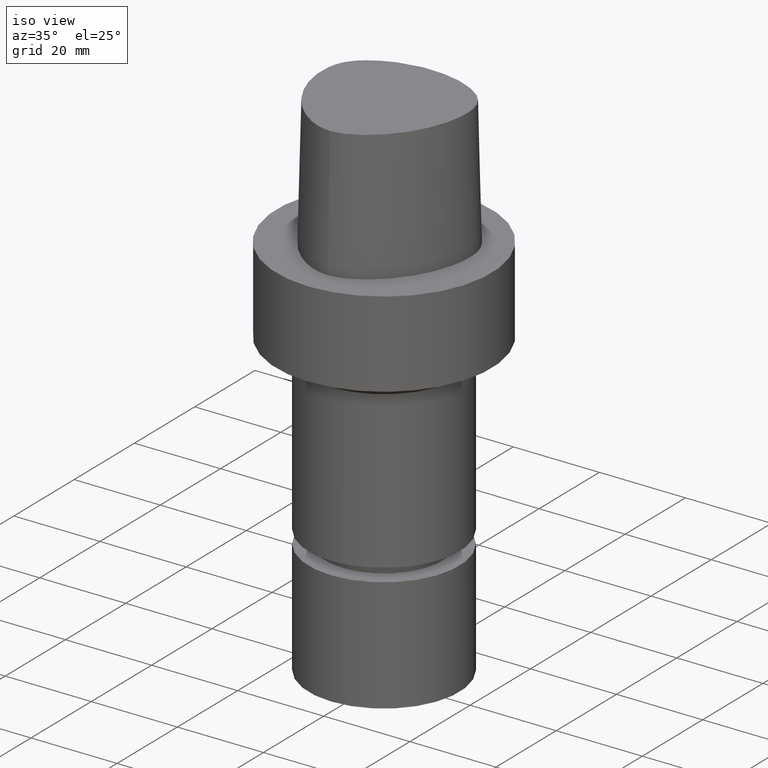
[diagram: clean part render]
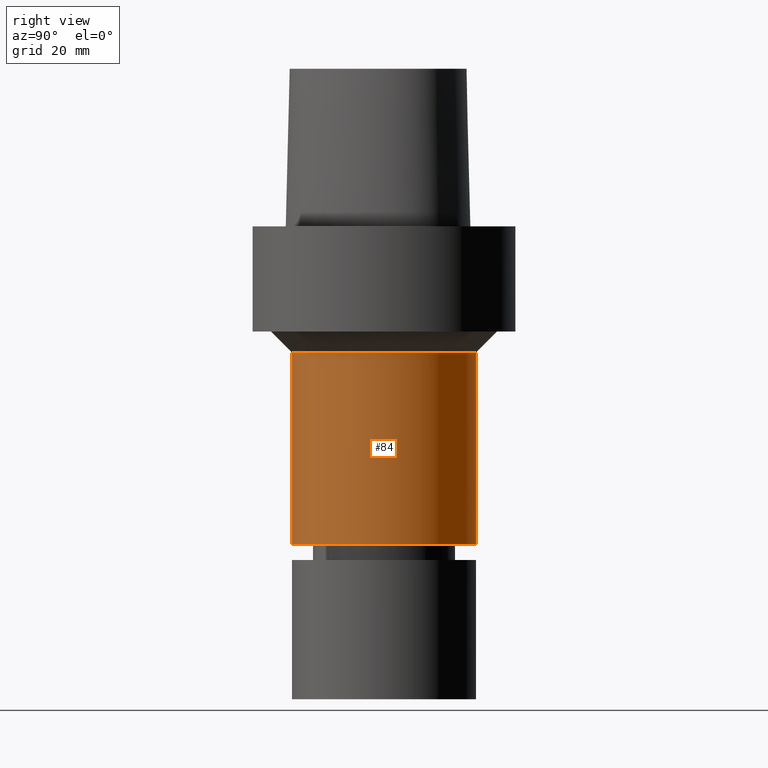
[diagram: tour spotlight — one face highlighted and labeled with its STEP entity id]
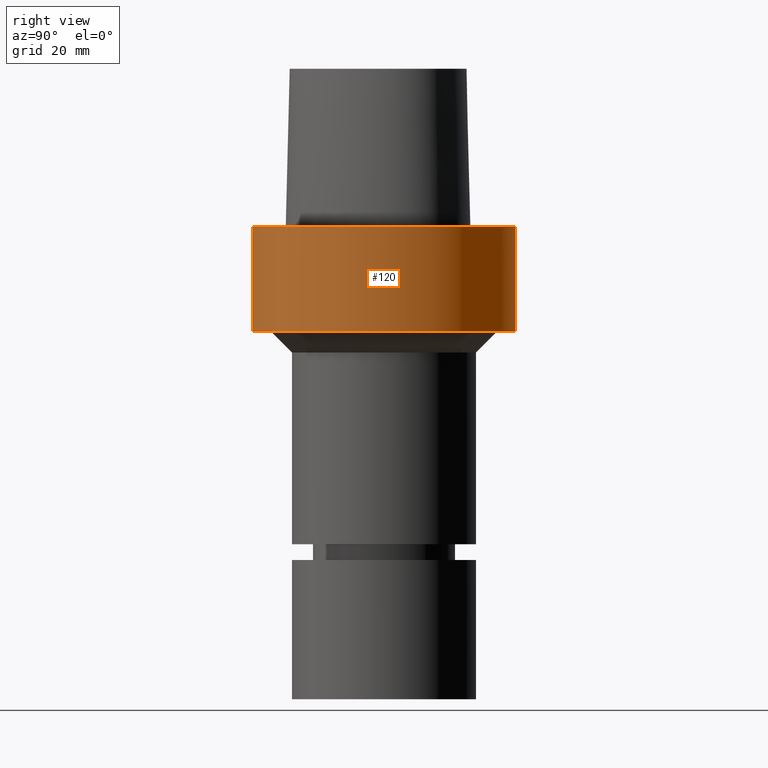
[diagram: tour spotlight — one face highlighted and labeled with its STEP entity id]
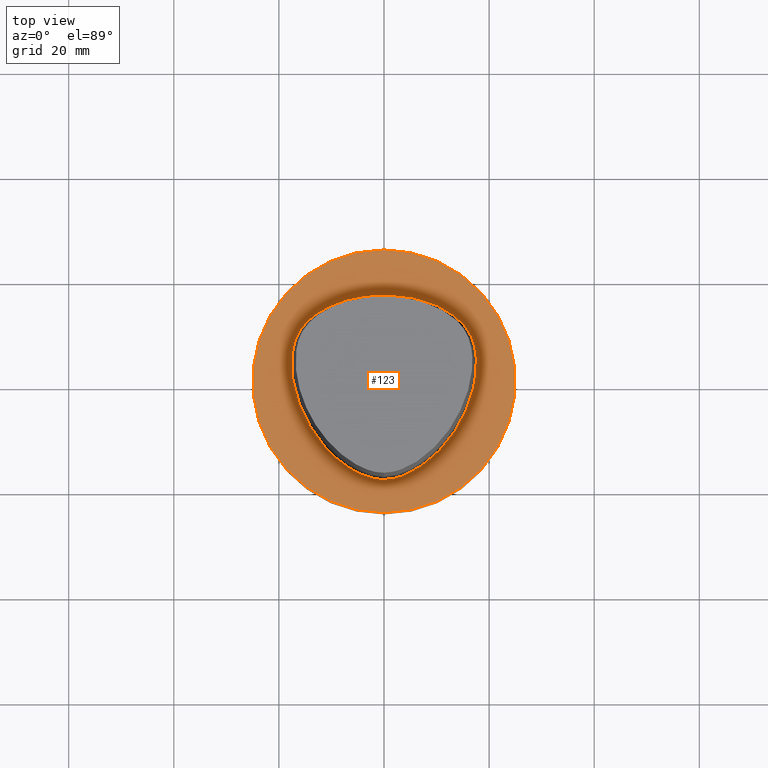
[diagram: tour spotlight — one face highlighted and labeled with its STEP entity id]
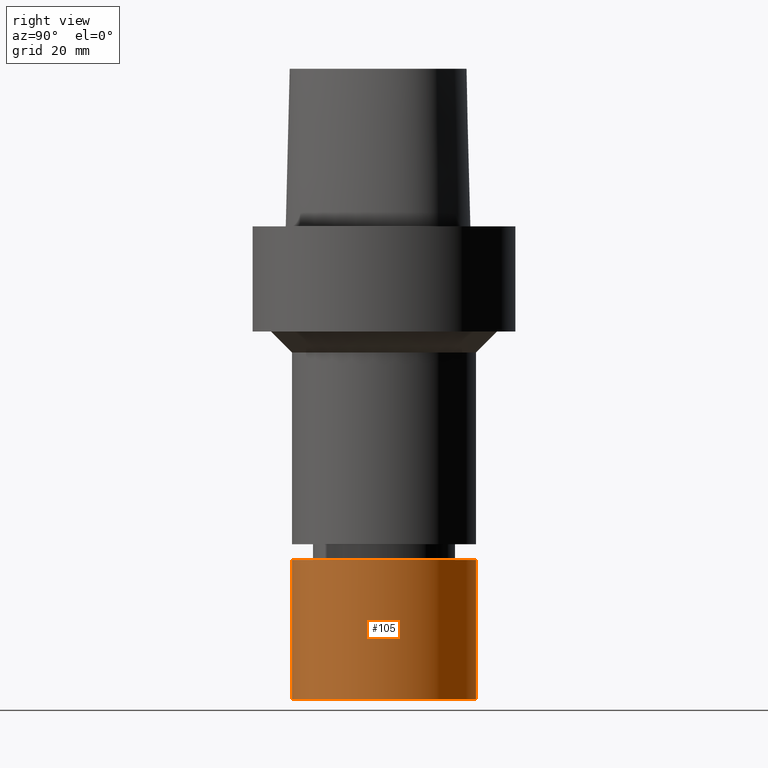
[diagram: tour spotlight — one face highlighted and labeled with its STEP entity id]
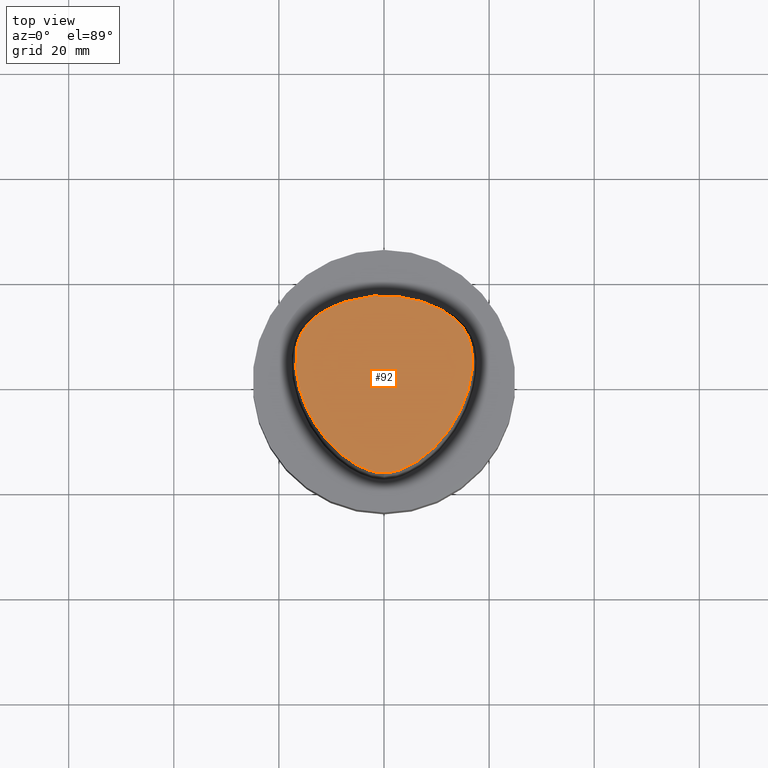
[diagram: tour spotlight — one face highlighted and labeled with its STEP entity id]
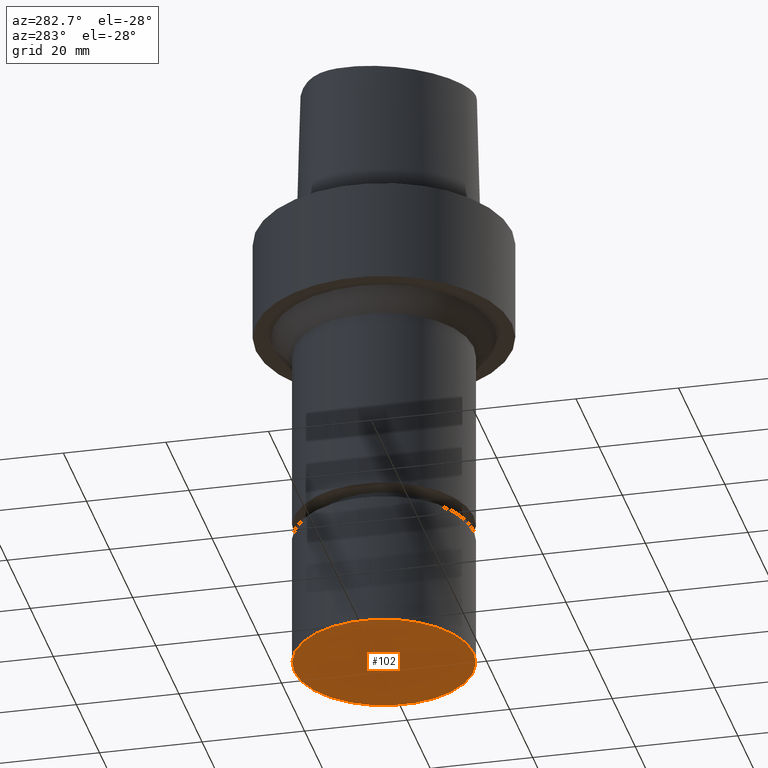
[diagram: tour spotlight — one face highlighted and labeled with its STEP entity id]
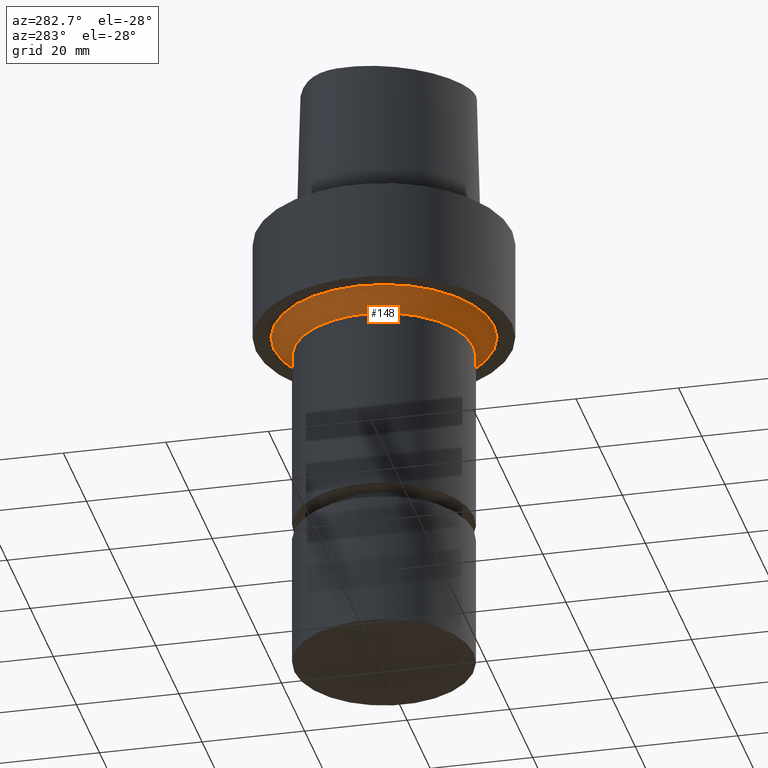
[diagram: tour spotlight — one face highlighted and labeled with its STEP entity id]
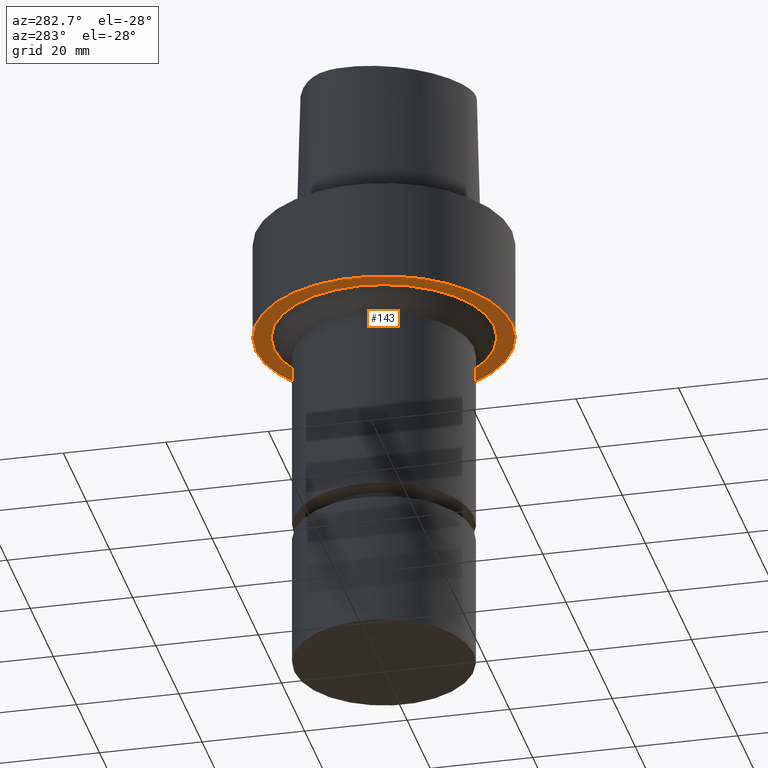
[diagram: tour spotlight — one face highlighted and labeled with its STEP entity id]
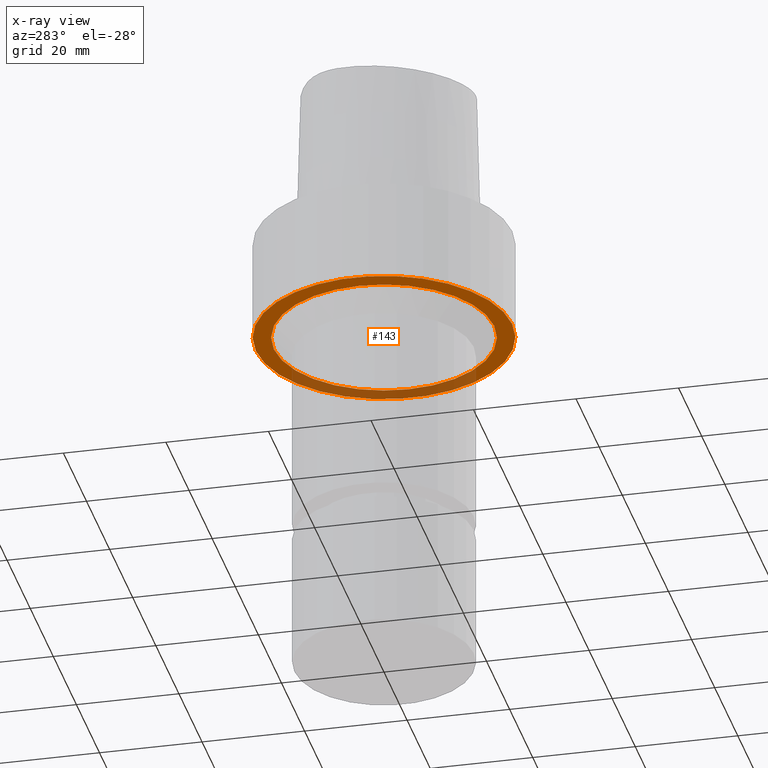
[diagram: x-ray of the same camera — body ghosted, this tour face saturated]
A machine part: a face-by-face anatomy tour. The part has 16 B-rep faces; the first image is the clean iso view, then the 8 largest visible faces are spotlighted one at a time (largest first), each with its STEP entity span.

Face 1 — right view, entity #84. In plain terms, the highlighted cylindrical surface (bore or boss wall) has radius 17.5 mm, axis along (0, 0, -1).
Definition (entity closure, byte-faithful):
#84=ADVANCED_FACE('Unnamed[1]',(#196,#197),#198,.T.);
#115=EDGE_CURVE('Unnamed[1]',#240,#240,#241,.T.);
#127=EDGE_CURVE('Unnamed[1]',#259,#259,#260,.T.);
#196=FACE_BOUND('',#771,.T.);
#197=FACE_BOUND('',#772,.T.);
#198=CYLINDRICAL_SURFACE('',#773,17.4999999999996);
#240=VERTEX_POINT('',#924);
#241=CIRCLE('',#925,17.4999999999997);
#259=VERTEX_POINT('',#948);
#260=CIRCLE('',#949,17.4999999999995);
#771=EDGE_LOOP('',(#1017));
#772=EDGE_LOOP('',(#1018));
#773=AXIS2_PLACEMENT_3D('',#1019,#1020,#1021);
#924=CARTESIAN_POINT('',(3.70455656742073E-015,17.4999999999997,-60.4999999999998));
#925=AXIS2_PLACEMENT_3D('',#1061,#1062,#1063);
#948=CARTESIAN_POINT('',(1.46957615897683E-015,17.4999999999995,-24.0));
#949=AXIS2_PLACEMENT_3D('',#1082,#1083,#1084);
#1017=ORIENTED_EDGE('',*,*,#115,.F.);
#1018=ORIENTED_EDGE('',*,*,#127,.T.);
#1019=CARTESIAN_POINT('',(2.58706636319878E-015,5.17413272639755E-015,-42.2499999999999));
#1020=DIRECTION('',(6.12323399573676E-017,1.22464679914735E-016,-1.0));
#1021=DIRECTION('',(-1.23259516440783E-032,1.0,1.22464679914735E-016));
#1061=CARTESIAN_POINT('',(3.70455656742073E-015,7.40911313484146E-015,-60.4999999999998));
#1062=DIRECTION('',(6.12323399573677E-017,1.22464679914735E-016,-1.0));
#1063=DIRECTION('',(-1.23259516440783E-032,1.0,1.22464679914735E-016));
#1082=CARTESIAN_POINT('',(1.46957615897683E-015,2.93915231795365E-015,-24.0));
#1083=DIRECTION('',(6.12323399573677E-017,1.22464679914735E-016,-1.0));
#1084=DIRECTION('',(-1.23259516440783E-032,1.0,1.22464679914735E-016));

Face 2 — right view, entity #120. In plain terms, the highlighted cylindrical surface (bore or boss wall) has radius 25 mm, axis along (0, 0, -1).
Definition (entity closure, byte-faithful):
#120=ADVANCED_FACE('Unnamed[1]',(#247,#248),#249,.T.);
#137=EDGE_CURVE('Unnamed[1]',#273,#273,#274,.T.);
#145=EDGE_CURVE('Unnamed[1]',#286,#286,#287,.T.);
#247=FACE_BOUND('',#933,.T.);
#248=FACE_BOUND('',#934,.T.);
#249=CYLINDRICAL_SURFACE('',#935,25.0);
#273=VERTEX_POINT('',#965);
#274=CIRCLE('',#966,25.0);
#286=VERTEX_POINT('',#981);
#287=CIRCLE('',#982,25.0);
#933=EDGE_LOOP('',(#1068));
#934=EDGE_LOOP('',(#1069));
#935=AXIS2_PLACEMENT_3D('',#1070,#1071,#1072);
#965=CARTESIAN_POINT('',(1.22464679914735E-015,25.0,-20.0));
#966=AXIS2_PLACEMENT_3D('',#1095,#1096,#1097);
#981=CARTESIAN_POINT('',(-3.08148791101958E-031,25.0,3.06161699786838E-015));
#982=AXIS2_PLACEMENT_3D('',#1110,#1111,#1112);
#1068=ORIENTED_EDGE('',*,*,#137,.F.);
#1069=ORIENTED_EDGE('',*,*,#145,.T.);
#1070=CARTESIAN_POINT('',(6.12323399573677E-016,1.22464679914735E-015,-10.0));
#1071=DIRECTION('',(6.12323399573677E-017,1.22464679914735E-016,-1.0));
#1072=DIRECTION('',(-1.23259516440783E-032,1.0,1.22464679914735E-016));
#1095=CARTESIAN_POINT('',(1.22464679914735E-015,2.44929359829471E-015,-20.0));
#1096=DIRECTION('',(6.12323399573677E-017,1.22464679914735E-016,-1.0));
#1097=DIRECTION('',(-1.23259516440783E-032,1.0,1.22464679914735E-016));
#1110=CARTESIAN_POINT('',(0.0,0.0,0.0));
#1111=DIRECTION('',(6.12323399573677E-017,1.22464679914735E-016,-1.0));
#1112=DIRECTION('',(-1.23259516440783E-032,1.0,1.22464679914735E-016));

Face 3 — top view, entity #123. In plain terms, the highlighted planar face has unit normal (-0, -0, 1).
Definition (entity closure, byte-faithful):
#99=EDGE_CURVE('Unnamed[1]',#219,#219,#220,.T.);
#123=ADVANCED_FACE('Unnamed[1]',(#252,#253),#254,.T.);
#145=EDGE_CURVE('Unnamed[1]',#286,#286,#287,.T.);
#219=VERTEX_POINT('',#800);
#220=B_SPLINE_CURVE_WITH_KNOTS('',3,(#801,#802,#803,#804,#805,#806,#807,#808,#809,#810,#811,#812,#813,#814,#815,#816,#817,#818,#819,#820,#821,#822,#823,#824,#825,#826,#827,#828,#829,#830,#831,#832,#833,#834,#835,#836,#837,#838,#839,#840,#841,#842,#843,#844,#845,#846,#847,#848,#849,#850,#851,#852,#853,#854,#855,#856,#857,#858,#859,#860,#861,#862,#863,#864,#865,#866,#867,#868,#869,#870,#871,#872,#873,#874,#875,#876,#877,#878,#879,#880,#881,#882,#883,#884,#885,#886,#887,#888,#889,#890,#891,#892,#893,#894,#895,#896),.UNSPECIFIED.,.T.,.F.,(4,2,2,2,2,2,2,2,2,2,2,2,2,2,2,2,2,2,2,2,2,2,2,2,2,2,2,2,2,2,2,2,2,2,2,2,2,2,2,2,2,2,2,2,2,2,2,4),(0.0,0.000251979175567,0.023135829350767,0.046149078767971,0.068686553945372,0.09058948843834,0.11187442371895,0.132659030725504,0.153111474090064,0.173428097006866,0.193812703683075,0.214465113334926,0.235566638619369,0.257256396596226,0.279590584305387,0.302476275092963,0.325611612149197,0.348735785989546,0.371826971229282,0.39455923139207,0.416669726533691,0.438154204641074,0.459103554741756,0.479643077908811,0.50010643098029,0.520399705216369,0.54092682403315,0.561890845659905,0.583370991138857,0.605476574502583,0.62820876493626,0.65131550684809,0.674427687768046,0.697531018602722,0.720425222070344,0.742763449220249,0.764449723968905,0.785551037463572,0.806204240231889,0.826588983931571,0.846905402970388,0.867357715119018,0.88814171778586,0.909429413217286,0.931324749020081,0.953885589892717,0.976862732393428,1.0),.UNSPECIFIED.);
#252=FACE_BOUND('',#939,.T.);
#253=FACE_OUTER_BOUND('',#940,.T.);
#254=PLANE('',#941);
#286=VERTEX_POINT('',#981);
#287=CIRCLE('',#982,25.0);
#800=CARTESIAN_POINT('',(-0.00144332333831829,-18.693734925237,1.58949405722709E-031));
#801=CARTESIAN_POINT('',(-0.00144332333831829,-18.693734925237,1.58949405722709E-031));
#802=CARTESIAN_POINT('',(-0.0107097733408023,-18.6937739851458,1.18444691579815E-031));
#803=CARTESIAN_POINT('',(-0.0199759398304303,-18.6937986220233,1.90667064494336E-031));
#804=CARTESIAN_POINT('',(-0.87073259155424,-18.6947332287258,-2.46519032881566E-032));
#805=CARTESIAN_POINT('',(-1.7132146687811,-18.5561236138986,-1.72563323017096E-031));
#806=CARTESIAN_POINT('',(-3.34678034951543,-18.1076178270182,1.23259516440783E-031));
#807=CARTESIAN_POINT('',(-4.13763295357352,-17.7966649911857,0.0));
#808=CARTESIAN_POINT('',(-5.64401230436313,-17.0611782657116,-1.4791141972894E-031));
#809=CARTESIAN_POINT('',(-6.36074874666199,-16.6390568826018,9.86076131526265E-032));
#810=CARTESIAN_POINT('',(-7.71193183747336,-15.717785465073,-9.86076131526265E-032));
#811=CARTESIAN_POINT('',(-8.34816817062737,-15.221133209089,-1.97215226305253E-031));
#812=CARTESIAN_POINT('',(-9.54864267958622,-14.1801662707339,0.0));
#813=CARTESIAN_POINT('',(-10.1143778244459,-13.6375391489888,-9.86076131526265E-032));
#814=CARTESIAN_POINT('',(-11.1785439970871,-12.5139706700162,-9.86076131526265E-032));
#815=CARTESIAN_POINT('',(-11.6782474581115,-11.9342299113078,0.0));
#816=CARTESIAN_POINT('',(-12.6162342990191,-10.7421055435185,-1.97215226305253E-031));
#817=CARTESIAN_POINT('',(-13.055371557502,-10.1303892417647,0.0));
#818=CARTESIAN_POINT('',(-13.8770457728377,-8.87590863790404,9.86076131526265E-032));
#819=CARTESIAN_POINT('',(-14.2599388402702,-8.2333768267112,-9.86076131526265E-032));
#820=CARTESIAN_POINT('',(-14.97168833234,-6.91623888397976,1.97215226305253E-031));
#821=CARTESIAN_POINT('',(-15.3003608122286,-6.24153310972228,0.0));
#822=CARTESIAN_POINT('',(-15.9019181796067,-4.85709547419161,0.0));
#823=CARTESIAN_POINT('',(-16.1740130050164,-4.14701882283056,1.97215226305253E-031));
#824=CARTESIAN_POINT('',(-16.6580397097976,-2.68928374551173,0.0));
#825=CARTESIAN_POINT('',(-16.8685476043865,-1.9411430240201,0.0));
#826=CARTESIAN_POINT('',(-17.2177110849312,-0.406254182783721,0.0));
#827=CARTESIAN_POINT('',(-17.3541927925624,0.380994664903646,0.0));
#828=CARTESIAN_POINT('',(-17.5416073974851,1.99022033864964,0.0));
#829=CARTESIAN_POINT('',(-17.5899626525416,2.81255460248461,0.0));
#830=CARTESIAN_POINT('',(-17.563584952533,4.47617713465644,0.0));
#831=CARTESIAN_POINT('',(-17.4857707493695,5.31746225938347,0.0));
#832=CARTESIAN_POINT('',(-17.1712152948197,6.98496502795616,0.0));
#833=CARTESIAN_POINT('',(-16.932846471387,7.81104073212088,0.0));
#834=CARTESIAN_POINT('',(-16.2234989303146,9.36022258130064,0.0));
#835=CARTESIAN_POINT('',(-15.7525288634429,10.0833544868442,0.0));
#836=CARTESIAN_POINT('',(-14.6462939775209,11.3794173305263,0.0));
#837=CARTESIAN_POINT('',(-14.0112703709932,11.9525998966018,0.0));
#838=CARTESIAN_POINT('',(-12.6649577858213,12.9708269345166,0.0));
#839=CARTESIAN_POINT('',(-11.9549187103733,13.4176956956896,9.86076131526265E-032));
#840=CARTESIAN_POINT('',(-10.5004911910335,14.1970175551563,0.0));
#841=CARTESIAN_POINT('',(-9.7575533569854,14.5322819629711,-9.86076131526265E-032));
#842=CARTESIAN_POINT('',(-8.26254539063019,15.1133265717584,-9.86076131526265E-032));
#843=CARTESIAN_POINT('',(-7.51128946075537,15.3613193072948,-9.86076131526265E-032));
#844=CARTESIAN_POINT('',(-6.00522655029125,15.7739014771636,0.0));
#845=CARTESIAN_POINT('',(-5.25098149060303,15.940365829473,4.93038065763132E-032));
#846=CARTESIAN_POINT('',(-3.74452370137136,16.1783002530882,4.93038065763132E-032));
#847=CARTESIAN_POINT('',(-2.9925639102356,16.2517640462219,-1.97215226305253E-031));
#848=CARTESIAN_POINT('',(-1.48914620895443,16.3898646921674,-1.84889274661175E-031));
#849=CARTESIAN_POINT('',(-0.737689844422075,16.454322887119,1.84889274661175E-031));
#850=CARTESIAN_POINT('',(0.759326987696435,16.4536103338567,6.77927340424307E-032));
#851=CARTESIAN_POINT('',(1.50487089700432,16.3916719627081,-1.97215226305253E-031));
#852=CARTESIAN_POINT('',(3.00152605278829,16.2529050894156,-7.39557098644699E-032));
#853=CARTESIAN_POINT('',(3.75259609178933,16.1756990011092,-9.86076131526265E-032));
#854=CARTESIAN_POINT('',(5.25866006360267,15.9348272624441,-1.4791141972894E-031));
#855=CARTESIAN_POINT('',(6.01339669607053,15.7693347335975,1.4791141972894E-031));
#856=CARTESIAN_POINT('',(7.52174791015443,15.3636385273713,0.0));
#857=CARTESIAN_POINT('',(8.27488011859475,15.1217203315759,0.0));
#858=CARTESIAN_POINT('',(9.77128987676661,14.5452319544132,9.86076131526265E-032));
#859=CARTESIAN_POINT('',(10.5136604457977,14.20816965576,0.0));
#860=CARTESIAN_POINT('',(11.9637825858721,13.4211978486476,-9.86076131526265E-032));
#861=CARTESIAN_POINT('',(12.6699581239128,12.9683397391863,1.97215226305253E-031));
#862=CARTESIAN_POINT('',(14.0107896940302,11.9417697294217,0.0));
#863=CARTESIAN_POINT('',(14.6441161661191,11.3662092641098,0.0));
#864=CARTESIAN_POINT('',(15.7473444143777,10.0678607932392,-1.97215226305253E-031));
#865=CARTESIAN_POINT('',(16.2172279070315,9.34515014826243,0.0));
#866=CARTESIAN_POINT('',(16.9299748942786,7.79911649806176,-1.97215226305253E-031));
#867=CARTESIAN_POINT('',(17.1732678868715,6.97591096726165,0.0));
#868=CARTESIAN_POINT('',(17.4947165291087,5.31078187777496,0.0));
#869=CARTESIAN_POINT('',(17.5742122859752,4.46891080588121,0.0));
#870=CARTESIAN_POINT('',(17.5984503582426,2.80469955056706,0.0));
#871=CARTESIAN_POINT('',(17.5464797751086,1.98232636532396,0.0));
#872=CARTESIAN_POINT('',(17.3530324455179,0.373802434650424,0.0));
#873=CARTESIAN_POINT('',(17.2140873477037,-0.412741037255912,0.0));
#874=CARTESIAN_POINT('',(16.8640679933744,-1.94732109648072,0.0));
#875=CARTESIAN_POINT('',(16.6550051401061,-2.69581759912329,0.0));
#876=CARTESIAN_POINT('',(16.1721668251879,-4.15391144824405,0.0));
#877=CARTESIAN_POINT('',(15.8998720313717,-4.86400476772738,0.0));
#878=CARTESIAN_POINT('',(15.2976461182969,-6.24821889850589,0.0));
#879=CARTESIAN_POINT('',(14.9685089040774,-6.9226902547916,0.0));
#880=CARTESIAN_POINT('',(14.2562315235154,-8.23953226144279,0.0));
#881=CARTESIAN_POINT('',(13.8732695848357,-8.88199998589755,0.0));
#882=CARTESIAN_POINT('',(13.0515094984057,-10.1364217212122,0.0));
#883=CARTESIAN_POINT('',(12.612354568037,-10.7481421677501,0.0));
#884=CARTESIAN_POINT('',(11.6737441165097,-11.9397215871539,0.0));
#885=CARTESIAN_POINT('',(11.1734254860308,-12.5189032007719,0.0));
#886=CARTESIAN_POINT('',(10.1074745701417,-13.640998338336,-9.86076131526265E-032));
#887=CARTESIAN_POINT('',(9.54055189248609,-14.182694679151,0.0));
#888=CARTESIAN_POINT('',(8.33747886858352,-15.2200706351975,-9.86076131526265E-032));
#889=CARTESIAN_POINT('',(7.69981598148188,-15.7139994399403,0.0));
#890=CARTESIAN_POINT('',(6.35130494327661,-16.6404483507205,-4.93038065763132E-032));
#891=CARTESIAN_POINT('',(5.6388427285293,-17.0707143827691,-9.86076131526265E-032));
#892=CARTESIAN_POINT('',(4.1368842572046,-17.8149844980219,-9.86076131526265E-032));
#893=CARTESIAN_POINT('',(3.3461818724523,-18.1267181400899,2.46519032881566E-032));
#894=CARTESIAN_POINT('',(1.70267749900168,-18.5649567925168,1.72563323017096E-031));
#895=CARTESIAN_POINT('',(0.849421963398066,-18.6901483607448,0.0));
#896=CARTESIAN_POINT('',(-0.00144332333831829,-18.693734925237,1.58949405722709E-031));
#939=EDGE_LOOP('',(#1074));
#940=EDGE_LOOP('',(#1075));
#941=AXIS2_PLACEMENT_3D('',#1076,#1077,#1078);
#981=CARTESIAN_POINT('',(-3.08148791101958E-031,25.0,3.06161699786838E-015));
#982=AXIS2_PLACEMENT_3D('',#1110,#1111,#1112);
#1074=ORIENTED_EDGE('',*,*,#99,.T.);
#1075=ORIENTED_EDGE('',*,*,#145,.F.);
#1076=CARTESIAN_POINT('',(-1.54074395550979E-031,12.5,1.53080849893419E-015));
#1077=DIRECTION('',(-6.12323399573677E-017,-1.22464679914735E-016,1.0));
#1078=DIRECTION('',(1.23259516440783E-032,-1.0,-1.22464679914735E-016));
#1110=CARTESIAN_POINT('',(0.0,0.0,0.0));
#1111=DIRECTION('',(6.12323399573677E-017,1.22464679914735E-016,-1.0));
#1112=DIRECTION('',(-1.23259516440783E-032,1.0,1.22464679914735E-016));

Face 4 — right view, entity #105. In plain terms, the highlighted cylindrical surface (bore or boss wall) has radius 17.5 mm, axis along (0, 0, -1).
Definition (entity closure, byte-faithful):
#66=EDGE_CURVE('Unnamed[1]',#169,#169,#170,.T.);
#105=ADVANCED_FACE('Unnamed[1]',(#227,#228),#229,.T.);
#117=EDGE_CURVE('Unnamed[1]',#243,#243,#244,.T.);
#169=VERTEX_POINT('',#306);
#170=CIRCLE('',#307,17.5);
#227=FACE_BOUND('',#905,.T.);
#228=FACE_BOUND('',#906,.T.);
#229=CYLINDRICAL_SURFACE('',#907,17.5);
#243=VERTEX_POINT('',#928);
#244=CIRCLE('',#929,17.5);
#306=CARTESIAN_POINT('',(5.51091059616309E-015,17.5,-89.9999999999999));
#307=AXIS2_PLACEMENT_3D('',#990,#991,#992);
#905=EDGE_LOOP('',(#1050));
#906=EDGE_LOOP('',(#1051));
#907=AXIS2_PLACEMENT_3D('',#1052,#1053,#1054);
#928=CARTESIAN_POINT('',(3.88825452162421E-015,17.5,-63.5000152587891));
#929=AXIS2_PLACEMENT_3D('',#1064,#1065,#1066);
#990=CARTESIAN_POINT('',(5.51091059616309E-015,1.10218211923262E-014,-89.9999999999999));
#991=DIRECTION('',(6.12323399573677E-017,1.22464679914735E-016,-1.0));
#992=DIRECTION('',(-1.23259516440783E-032,1.0,1.22464679914735E-016));
#1050=ORIENTED_EDGE('',*,*,#66,.F.);
#1051=ORIENTED_EDGE('',*,*,#117,.T.);
#1052=CARTESIAN_POINT('',(4.69958255889365E-015,9.39916511778729E-015,-76.7500076293945));
#1053=DIRECTION('',(6.12323399573677E-017,1.22464679914735E-016,-1.0));
#1054=DIRECTION('',(-1.23259516440783E-032,1.0,1.22464679914735E-016));
#1064=CARTESIAN_POINT('',(3.88825452162421E-015,7.77650904324841E-015,-63.5000152587891));
#1065=DIRECTION('',(6.12323399573677E-017,1.22464679914735E-016,-1.0));
#1066=DIRECTION('',(-1.23259516440783E-032,1.0,1.22464679914735E-016));

Face 5 — top view, entity #92. In plain terms, the highlighted planar face has unit normal (-0, 0, 1).
Definition (entity closure, byte-faithful):
#70=EDGE_CURVE('Unnamed[1]',#175,#175,#176,.T.);
#92=ADVANCED_FACE('Unnamed[1]',(#208),#209,.T.);
#175=VERTEX_POINT('',#314);
#176=B_SPLINE_CURVE_WITH_KNOTS('',3,(#315,#316,#317,#318,#319,#320,#321,#322,#323,#324,#325,#326,#327,#328,#329,#330,#331,#332,#333,#334,#335,#336,#337,#338,#339,#340,#341,#342,#343,#344,#345,#346,#347,#348,#349,#350,#351,#352,#353,#354,#355,#356,#357,#358,#359,#360,#361,#362,#363),.UNSPECIFIED.,.T.,.F.,(4,1,1,1,1,1,1,1,1,1,1,1,1,1,1,1,1,1,1,1,1,1,1,1,1,1,1,1,1,1,1,1,1,1,1,1,1,1,1,1,1,1,1,1,1,1,4),(0.0,0.023135829350767,0.046149078767971,0.068686553945372,0.09058948843834,0.11187442371895,0.132659030725504,0.153111474090064,0.173428097006866,0.193812703683075,0.214465113334926,0.235566638619369,0.257256396596226,0.279590584305387,0.302476275092963,0.325611612149197,0.348735785989546,0.371826971229282,0.39455923139207,0.416669726533691,0.438154204641074,0.459103554741756,0.479643077908811,0.50010643098029,0.520399705216369,0.54092682403315,0.561890845659905,0.583370991138857,0.605476574502583,0.62820876493626,0.65131550684809,0.674427687768046,0.697531018602722,0.720425222070344,0.742763449220249,0.764449723968905,0.785551037463572,0.806204240231889,0.826588983931571,0.846905402970388,0.867357715119018,0.88814171778586,0.909429413217286,0.931324749020081,0.953885589892717,0.976862732393428,1.0),.UNSPECIFIED.);
#208=FACE_OUTER_BOUND('',#786,.T.);
#209=PLANE('',#787);
#314=CARTESIAN_POINT('',(-2.78602932413959E-015,-17.9423775546504,30.0));
#315=CARTESIAN_POINT('',(-2.78602932413959E-015,-17.9423775546504,30.0));
#316=CARTESIAN_POINT('',(-0.814120797978075,-17.9643878187761,30.0));
#317=CARTESIAN_POINT('',(-2.44279318309434,-17.6670056599032,30.0));
#318=CARTESIAN_POINT('',(-4.69065600148019,-16.7591312239375,30.0));
#319=CARTESIAN_POINT('',(-6.73157621234646,-15.527654017863,30.0));
#320=CARTESIAN_POINT('',(-8.55606567082544,-14.0980586872352,30.0));
#321=CARTESIAN_POINT('',(-10.1771160862307,-12.5294920614813,30.0));
#322=CARTESIAN_POINT('',(-11.6098311271326,-10.8549672983455,30.0));
#323=CARTESIAN_POINT('',(-12.8723444784573,-9.09084166630711,30.0));
#324=CARTESIAN_POINT('',(-13.9762474627415,-7.23982146073079,30.0));
#325=CARTESIAN_POINT('',(-14.9241349859217,-5.29636298798721,30.0));
#326=CARTESIAN_POINT('',(-15.7132736469777,-3.2533357158659,30.0));
#327=CARTESIAN_POINT('',(-16.3266313043064,-1.10238675181427,30.0));
#328=CARTESIAN_POINT('',(-16.7327867713303,1.15808256309649,30.0));
#329=CARTESIAN_POINT('',(-16.8801613787167,3.51564121263174,30.0));
#330=CARTESIAN_POINT('',(-16.6855836228514,5.92229128835704,30.0));
#331=CARTESIAN_POINT('',(-16.0281509658443,8.29517868854449,30.0));
#332=CARTESIAN_POINT('',(-14.6640408300166,10.3669104243273,30.0));
#333=CARTESIAN_POINT('',(-12.8332969997264,11.9882678763451,30.0));
#334=CARTESIAN_POINT('',(-10.7856401290832,13.2404482750702,30.0));
#335=CARTESIAN_POINT('',(-8.65298741417579,14.19764142693,30.0));
#336=CARTESIAN_POINT('',(-6.48957622042645,14.9235651413533,30.0));
#337=CARTESIAN_POINT('',(-4.30784954842127,15.2925809723717,30.0));
#338=CARTESIAN_POINT('',(-2.16867899857279,15.8525920055235,30.0));
#339=CARTESIAN_POINT('',(-0.0054980597270801,15.506533819507,30.0));
#340=CARTESIAN_POINT('',(2.15423811148254,15.6758925558313,30.0));
#341=CARTESIAN_POINT('',(4.31367631773855,15.3366483013887,30.0));
#342=CARTESIAN_POINT('',(6.49156913463884,14.9221231752341,30.0));
#343=CARTESIAN_POINT('',(8.65317555043793,14.199841033848,30.0));
#344=CARTESIAN_POINT('',(10.7855591317115,13.2388028674922,30.0));
#345=CARTESIAN_POINT('',(12.8289446834375,11.9844078416963,30.0));
#346=CARTESIAN_POINT('',(14.6809214389867,10.37934328945,30.0));
#347=CARTESIAN_POINT('',(15.9964040236072,8.28000660116028,30.0));
#348=CARTESIAN_POINT('',(16.6999197177274,5.92601467018833,30.0));
#349=CARTESIAN_POINT('',(16.8785470495877,3.51485696104406,30.0));
#350=CARTESIAN_POINT('',(16.7308989568545,1.15864914401017,30.0));
#351=CARTESIAN_POINT('',(16.3270119409732,-1.10262794482627,30.0));
#352=CARTESIAN_POINT('',(15.7138840293007,-3.25349612648562,30.0));
#353=CARTESIAN_POINT('',(14.9244427410538,-5.29647704660135,30.0));
#354=CARTESIAN_POINT('',(13.9756636589241,-7.23950698099948,30.0));
#355=CARTESIAN_POINT('',(12.8724663956831,-9.09088034657936,30.0));
#356=CARTESIAN_POINT('',(11.6099597844916,-10.8551381410581,30.0));
#357=CARTESIAN_POINT('',(10.1759690661341,-12.5282962499649,30.0));
#358=CARTESIAN_POINT('',(8.55887653552809,-14.1013446755591,30.0));
#359=CARTESIAN_POINT('',(6.72595297076831,-15.5205541881092,30.0));
#360=CARTESIAN_POINT('',(4.69995925068727,-16.7729025475684,30.0));
#361=CARTESIAN_POINT('',(2.43523789305481,-17.660279021922,30.0));
#362=CARTESIAN_POINT('',(0.814171408394767,-17.9203659222405,30.0));
#363=CARTESIAN_POINT('',(-2.83508942413959E-015,-17.9423775546504,30.0));
#786=EDGE_LOOP('',(#1031));
#787=AXIS2_PLACEMENT_3D('',#1032,#1033,#1034);
#1031=ORIENTED_EDGE('',*,*,#70,.F.);
#1032=CARTESIAN_POINT('',(-0.000657534264248203,-1.65575572608802,30.0));
#1033=DIRECTION('',(-0.0,2.95577857036584E-049,1.0));
#1034=DIRECTION('',(1.0,0.0,0.0));

Face 6 — auxiliary view, entity #102. In plain terms, the highlighted planar face has unit normal (0, 0, -1).
Definition (entity closure, byte-faithful):
#66=EDGE_CURVE('Unnamed[1]',#169,#169,#170,.T.);
#102=ADVANCED_FACE('Unnamed[1]',(#223),#224,.T.);
#169=VERTEX_POINT('',#306);
#170=CIRCLE('',#307,17.5);
#223=FACE_OUTER_BOUND('',#900,.T.);
#224=PLANE('',#901);
#306=CARTESIAN_POINT('',(5.51091059616309E-015,17.5,-89.9999999999999));
#307=AXIS2_PLACEMENT_3D('',#990,#991,#992);
#900=EDGE_LOOP('',(#1045));
#901=AXIS2_PLACEMENT_3D('',#1046,#1047,#1048);
#990=CARTESIAN_POINT('',(5.51091059616309E-015,1.10218211923262E-014,-89.9999999999999));
#991=DIRECTION('',(6.12323399573677E-017,1.22464679914735E-016,-1.0));
#992=DIRECTION('',(-1.23259516440783E-032,1.0,1.22464679914735E-016));
#1045=ORIENTED_EDGE('',*,*,#66,.T.);
#1046=CARTESIAN_POINT('',(5.51091059616309E-015,8.75000000000002,-89.9999999999999));
#1047=DIRECTION('',(6.12323399573677E-017,1.22464679914735E-016,-1.0));
#1048=DIRECTION('',(-1.23259516440783E-032,1.0,1.22464679914735E-016));

Face 7 — auxiliary view, entity #148. In plain terms, the highlighted conical surface has half-angle 45 deg.
Definition (entity closure, byte-faithful):
#94=EDGE_CURVE('Unnamed[1]',#211,#211,#212,.T.);
#127=EDGE_CURVE('Unnamed[1]',#259,#259,#260,.T.);
#148=ADVANCED_FACE('Unnamed[1]',(#290,#291),#292,.T.);
#211=VERTEX_POINT('',#790);
#212=CIRCLE('',#791,21.4999999999995);
#259=VERTEX_POINT('',#948);
#260=CIRCLE('',#949,17.4999999999995);
#290=FACE_BOUND('',#986,.T.);
#291=FACE_BOUND('',#987,.T.);
#292=CONICAL_SURFACE('',#988,19.4999999999995,0.785398163397446);
#790=CARTESIAN_POINT('',(1.22464679914735E-015,21.4999999999996,-20.0));
#791=AXIS2_PLACEMENT_3D('',#1035,#1036,#1037);
#948=CARTESIAN_POINT('',(1.46957615897683E-015,17.4999999999995,-24.0));
#949=AXIS2_PLACEMENT_3D('',#1082,#1083,#1084);
#986=EDGE_LOOP('',(#1114));
#987=EDGE_LOOP('',(#1115));
#988=AXIS2_PLACEMENT_3D('',#1116,#1117,#1118);
#1035=CARTESIAN_POINT('',(1.22464679914735E-015,2.44929359829471E-015,-20.0));
#1036=DIRECTION('',(6.12323399573677E-017,1.22464679914735E-016,-1.0));
#1037=DIRECTION('',(-1.23259516440783E-032,1.0,1.22464679914735E-016));
#1082=CARTESIAN_POINT('',(1.46957615897683E-015,2.93915231795365E-015,-24.0));
#1083=DIRECTION('',(6.12323399573677E-017,1.22464679914735E-016,-1.0));
#1084=DIRECTION('',(-1.23259516440783E-032,1.0,1.22464679914735E-016));
#1114=ORIENTED_EDGE('',*,*,#127,.F.);
#1115=ORIENTED_EDGE('',*,*,#94,.T.);
#1116=CARTESIAN_POINT('',(1.34711147906209E-015,2.69422295812418E-015,-22.0));
#1117=DIRECTION('',(-6.12323399573677E-017,-1.22464679914735E-016,1.0));
#1118=DIRECTION('',(-1.23259516440783E-032,1.0,1.22464679914735E-016));

Face 8 — auxiliary view, entity #143. An x-ray twin of the same camera follows (body ghosted, this face saturated) — the face is partly hidden behind the body. In plain terms, the highlighted planar face has unit normal (0, 0, -1).
Definition (entity closure, byte-faithful):
#94=EDGE_CURVE('Unnamed[1]',#211,#211,#212,.T.);
#137=EDGE_CURVE('Unnamed[1]',#273,#273,#274,.T.);
#143=ADVANCED_FACE('Unnamed[1]',(#282,#283),#284,.T.);
#211=VERTEX_POINT('',#790);
#212=CIRCLE('',#791,21.4999999999995);
#273=VERTEX_POINT('',#965);
#274=CIRCLE('',#966,25.0);
#282=FACE_BOUND('',#976,.T.);
#283=FACE_OUTER_BOUND('',#977,.T.);
#284=PLANE('',#978);
#790=CARTESIAN_POINT('',(1.22464679914735E-015,21.4999999999996,-20.0));
#791=AXIS2_PLACEMENT_3D('',#1035,#1036,#1037);
#965=CARTESIAN_POINT('',(1.22464679914735E-015,25.0,-20.0));
#966=AXIS2_PLACEMENT_3D('',#1095,#1096,#1097);
#976=EDGE_LOOP('',(#1105));
#977=EDGE_LOOP('',(#1106));
#978=AXIS2_PLACEMENT_3D('',#1107,#1108,#1109);
#1035=CARTESIAN_POINT('',(1.22464679914735E-015,2.44929359829471E-015,-20.0));
#1036=DIRECTION('',(6.12323399573677E-017,1.22464679914735E-016,-1.0));
#1037=DIRECTION('',(-1.23259516440783E-032,1.0,1.22464679914735E-016));
#1095=CARTESIAN_POINT('',(1.22464679914735E-015,2.44929359829471E-015,-20.0));
#1096=DIRECTION('',(6.12323399573677E-017,1.22464679914735E-016,-1.0));
#1097=DIRECTION('',(-1.23259516440783E-032,1.0,1.22464679914735E-016));
#1105=ORIENTED_EDGE('',*,*,#94,.F.);
#1106=ORIENTED_EDGE('',*,*,#137,.T.);
#1107=CARTESIAN_POINT('',(1.22464679914735E-015,23.2499999999998,-20.0));
#1108=DIRECTION('',(6.12323399573677E-017,1.22464679914735E-016,-1.0));
#1109=DIRECTION('',(-1.23259516440783E-032,1.0,1.22464679914735E-016));